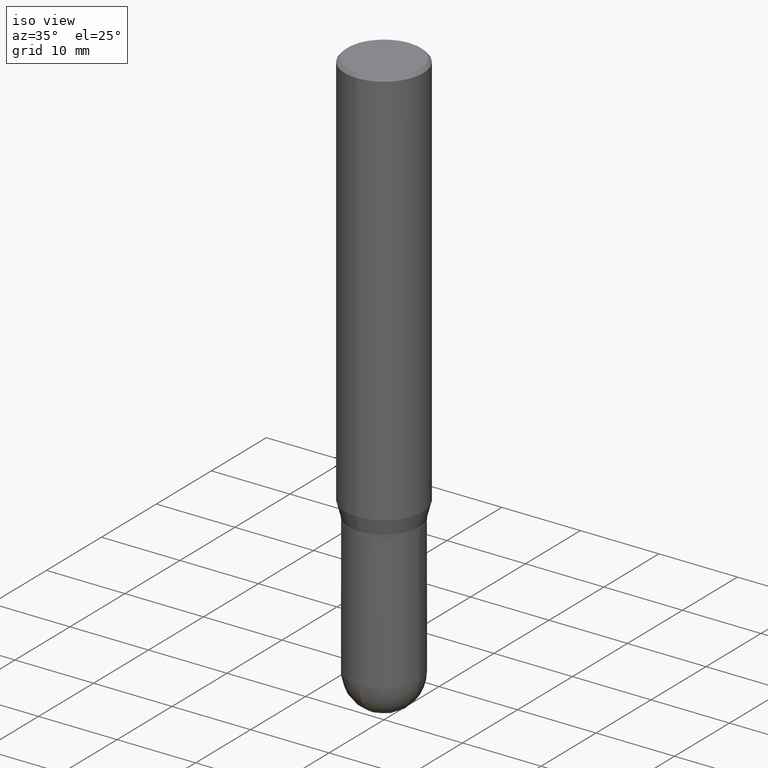
[diagram: clean part render]
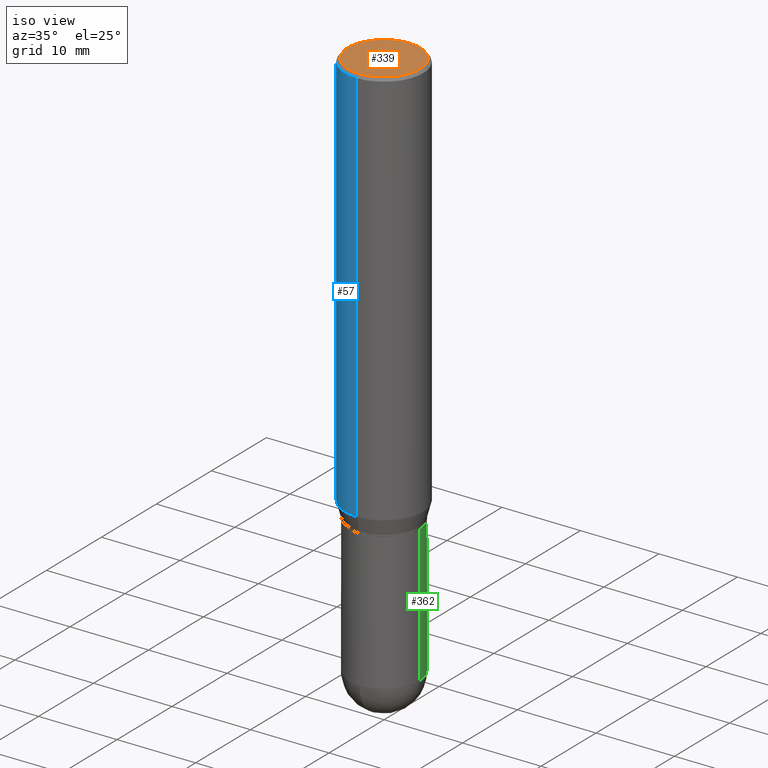
[diagram: same view with three faces highlighted in distinct colors, each labeled with its STEP entity id]
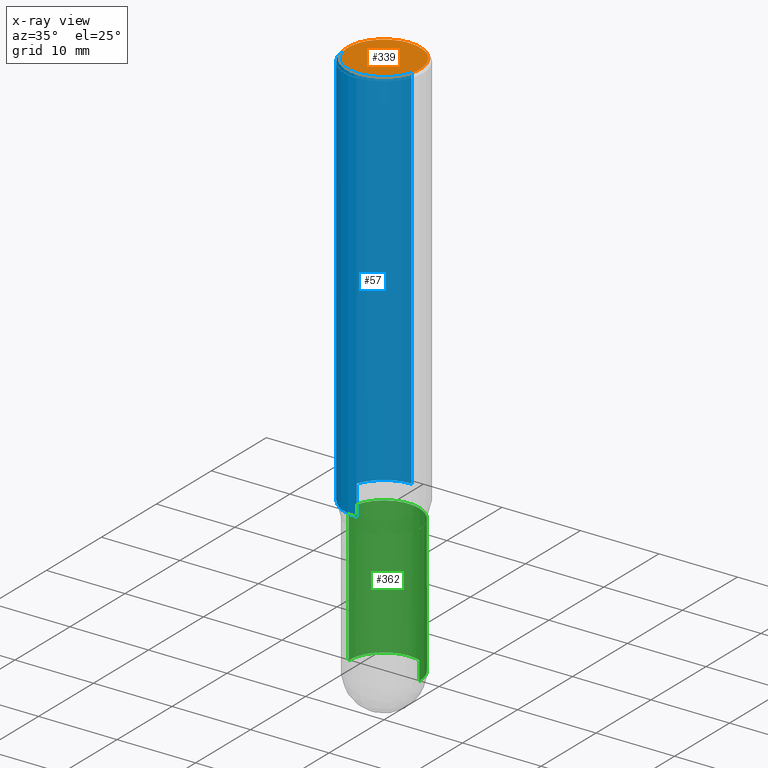
[diagram: x-ray of the same camera — body ghosted, the three highlighted faces saturated]
A machine part, iso view with three faces highlighted in distinct colors.
The next image is the same camera in x-ray (body ghosted, the three faces saturated) — at least one of them is partly hidden behind the body in this view.
Their STEP definitions:

[orange] entity #339 — the highlighted planar face has unit normal (0, -0, -1).
#26 = PLANE ( 'NONE',  #233 ) ;
#43 = AXIS2_PLACEMENT_3D ( 'NONE', #319, #207, #287 ) ;
#72 = FACE_OUTER_BOUND ( 'NONE', #385, .T. ) ;
#92 = VERTEX_POINT ( 'NONE', #239 ) ;
#106 = CIRCLE ( 'NONE', #43, 0.1818500000000000116 ) ;
#121 = DIRECTION ( 'NONE',  ( 6.982962677686265922E-15, 1.000000000000000000, -3.491172054067977715E-15 ) ) ;
#134 = EDGE_CURVE ( 'NONE', #489, #92, #106, .T. ) ;
#176 = AXIS2_PLACEMENT_3D ( 'NONE', #312, #278, #434 ) ;
#207 = DIRECTION ( 'NONE',  ( -2.445684778589314030E-29, 3.491172054067977715E-15, 1.000000000000000000 ) ) ;
#233 = AXIS2_PLACEMENT_3D ( 'NONE', #354, #237, #121 ) ;
#237 = DIRECTION ( 'NONE',  ( 2.445684778589313749E-29, -3.491172054067977715E-15, -1.000000000000000000 ) ) ;
#239 = CARTESIAN_POINT ( 'NONE',  ( -1.299035295878039226E-15, -0.1818500000000000116, 2.277643965498135137E-16 ) ) ;
#278 = DIRECTION ( 'NONE',  ( -2.445684778589314030E-29, 3.491172054067977715E-15, 1.000000000000000000 ) ) ;
#287 = DIRECTION ( 'NONE',  ( -6.982962677686265133E-15, -1.000000000000000000, 3.491172054067976926E-15 ) ) ;
#312 = CARTESIAN_POINT ( 'NONE',  ( 9.956510923775504622E-45, -1.421274442128118722E-30, -4.071052414824481619E-16 ) ) ;
#319 = CARTESIAN_POINT ( 'NONE',  ( 9.956510923775504622E-45, -1.421274442128118722E-30, -4.071052414824481619E-16 ) ) ;
#325 = EDGE_CURVE ( 'NONE', #92, #489, #458, .T. ) ;
#338 = ORIENTED_EDGE ( 'NONE', *, *, #134, .T. ) ;
#339 = ADVANCED_FACE ( 'NONE', ( #72 ), #26, .F. ) ;
#354 = CARTESIAN_POINT ( 'NONE',  ( 1.269851762937247450E-15, 0.1818500000000000116, -8.384222587734856826E-16 ) ) ;
#385 = EDGE_LOOP ( 'NONE', ( #338, #476 ) ) ;
#434 = DIRECTION ( 'NONE',  ( -6.982962677686265133E-15, -1.000000000000000000, 3.491172054067976926E-15 ) ) ;
#445 = CARTESIAN_POINT ( 'NONE',  ( 1.322223983019894726E-15, 0.1818500000000000116, -1.041974879514709887E-15 ) ) ;
#458 = CIRCLE ( 'NONE', #176, 0.1818500000000000116 ) ;
#476 = ORIENTED_EDGE ( 'NONE', *, *, #325, .T. ) ;
#489 = VERTEX_POINT ( 'NONE', #445 ) ;

[blue] entity #57 — the highlighted cylindrical surface (partial cylindrical patch) has radius 5 mm, axis along (-0, 0, 1).
#21 = AXIS2_PLACEMENT_3D ( 'NONE', #99, #56, #259 ) ;
#22 = VERTEX_POINT ( 'NONE', #461 ) ;
#45 = CARTESIAN_POINT ( 'NONE',  ( 4.899143408592464903E-29, -6.993441144453169598E-15, -2.003178599090893464 ) ) ;
#47 = DIRECTION ( 'NONE',  ( -2.445684778589314030E-29, 3.491172054067977715E-15, 1.000000000000000000 ) ) ;
#51 = ORIENTED_EDGE ( 'NONE', *, *, #205, .F. ) ;
#56 = DIRECTION ( 'NONE',  ( -2.445684778589314030E-29, 3.491172054067977715E-15, 1.000000000000000000 ) ) ;
#57 = ADVANCED_FACE ( 'NONE', ( #138 ), #452, .T. ) ;
#60 = VECTOR ( 'NONE', #271, 39.37007874015748143 ) ;
#80 = DIRECTION ( 'NONE',  ( -6.982962677686265922E-15, -1.000000000000000000, 4.163344669033675634E-15 ) ) ;
#88 = ORIENTED_EDGE ( 'NONE', *, *, #412, .F. ) ;
#90 = AXIS2_PLACEMENT_3D ( 'NONE', #282, #47, #130 ) ;
#99 = CARTESIAN_POINT ( 'NONE',  ( 0.000000000000000000, 0.000000000000000000, 0.000000000000000000 ) ) ;
#109 = EDGE_CURVE ( 'NONE', #321, #22, #145, .T. ) ;
#130 = DIRECTION ( 'NONE',  ( -6.982962677686265133E-15, -1.000000000000000000, 3.491137977679279424E-15 ) ) ;
#138 = FACE_OUTER_BOUND ( 'NONE', #144, .T. ) ;
#144 = EDGE_LOOP ( 'NONE', ( #88, #423, #175, #51 ) ) ;
#145 = LINE ( 'NONE', #146, #60 ) ;
#146 = CARTESIAN_POINT ( 'NONE',  ( -1.374596203102541214E-15, -0.1968499999999999694, 6.872372188432813315E-16 ) ) ;
#157 = CARTESIAN_POINT ( 'NONE',  ( 1.398703375343805514E-15, 0.1968499999999929750, -2.003178599090894352 ) ) ;
#170 = CARTESIAN_POINT ( 'NONE',  ( 1.398703375343756802E-15, 0.1968499999999999694, -6.872372188432813315E-16 ) ) ;
#175 = ORIENTED_EDGE ( 'NONE', *, *, #109, .T. ) ;
#205 = EDGE_CURVE ( 'NONE', #498, #22, #491, .T. ) ;
#212 = LINE ( 'NONE', #170, #475 ) ;
#259 = DIRECTION ( 'NONE',  ( -6.982962677686265922E-15, -1.000000000000000000, 3.491172054067977715E-15 ) ) ;
#271 = DIRECTION ( 'NONE',  ( -2.445684778589314030E-29, 3.491172054067977715E-15, 1.000000000000000000 ) ) ;
#282 = CARTESIAN_POINT ( 'NONE',  ( 3.668527167884071097E-31, -5.236758081102108568E-17, -0.01500000000000040710 ) ) ;
#300 = AXIS2_PLACEMENT_3D ( 'NONE', #45, #402, #80 ) ;
#321 = VERTEX_POINT ( 'NONE', #510 ) ;
#329 = DIRECTION ( 'NONE',  ( -2.445684778589314030E-29, 3.491172054067977715E-15, 1.000000000000000000 ) ) ;
#363 = CARTESIAN_POINT ( 'NONE',  ( 1.398703375343806303E-15, 0.1968499999999999139, -0.01500000000000109579 ) ) ;
#371 = VERTEX_POINT ( 'NONE', #157 ) ;
#402 = DIRECTION ( 'NONE',  ( -2.445684778589314030E-29, 3.491172054067977715E-15, 1.000000000000000000 ) ) ;
#412 = EDGE_CURVE ( 'NONE', #371, #498, #212, .T. ) ;
#423 = ORIENTED_EDGE ( 'NONE', *, *, #454, .T. ) ;
#433 = CIRCLE ( 'NONE', #300, 0.1968499999999999694 ) ;
#452 = CYLINDRICAL_SURFACE ( 'NONE', #21, 0.1968499999999999694 ) ;
#454 = EDGE_CURVE ( 'NONE', #371, #321, #433, .T. ) ;
#461 = CARTESIAN_POINT ( 'NONE',  ( -1.374596203102541017E-15, -0.1968500000000000805, -0.01499999999999972015 ) ) ;
#475 = VECTOR ( 'NONE', #329, 39.37007874015748143 ) ;
#491 = CIRCLE ( 'NONE', #90, 0.1968500000000000250 ) ;
#498 = VERTEX_POINT ( 'NONE', #363 ) ;
#510 = CARTESIAN_POINT ( 'NONE',  ( -1.374596203102492502E-15, -0.1968500000000069916, -2.003178599090893020 ) ) ;

[green] entity #362 — the highlighted cylindrical surface (partial cylindrical patch) has radius 4.4996 mm, axis along (-0, 0, 1).
#7 = CARTESIAN_POINT ( 'NONE',  ( 0.1771500000000000852, -8.522705948116114900E-15, -2.086699999999999999 ) ) ;
#15 = EDGE_CURVE ( 'NONE', #425, #71, #382, .T. ) ;
#55 = DIRECTION ( 'NONE',  ( -2.445468806185136597E-29, 3.491481338843145583E-15, 1.000000000000000000 ) ) ;
#71 = VERTEX_POINT ( 'NONE', #473 ) ;
#76 = DIRECTION ( 'NONE',  ( 1.000000000000000000, -6.982962677686270655E-15, 0.000000000000000000 ) ) ;
#94 = CARTESIAN_POINT ( 'NONE',  ( 6.787765491887772680E-29, -9.691130178159974964E-15, -2.775649999999999729 ) ) ;
#102 = ORIENTED_EDGE ( 'NONE', *, *, #188, .T. ) ;
#110 = FACE_OUTER_BOUND ( 'NONE', #370, .T. ) ;
#120 = VERTEX_POINT ( 'NONE', #7 ) ;
#154 = CARTESIAN_POINT ( 'NONE',  ( 0.000000000000000000, 0.000000000000000000, 0.000000000000000000 ) ) ;
#160 = CYLINDRICAL_SURFACE ( 'NONE', #365, 0.1771500000000000574 ) ;
#163 = CARTESIAN_POINT ( 'NONE',  ( -0.1771500000000000852, -7.229675687562965256E-15, -2.086699999999999999 ) ) ;
#165 = CARTESIAN_POINT ( 'NONE',  ( 5.102959757866523939E-29, -7.285674109763990928E-15, -2.086699999999999999 ) ) ;
#180 = ORIENTED_EDGE ( 'NONE', *, *, #15, .T. ) ;
#184 = VECTOR ( 'NONE', #291, 39.37007874015748143 ) ;
#188 = EDGE_CURVE ( 'NONE', #193, #425, #203, .T. ) ;
#189 = ORIENTED_EDGE ( 'NONE', *, *, #438, .F. ) ;
#192 = AXIS2_PLACEMENT_3D ( 'NONE', #440, #405, #76 ) ;
#193 = VERTEX_POINT ( 'NONE', #213 ) ;
#203 = CIRCLE ( 'NONE', #192, 0.1771500000000000574 ) ;
#213 = CARTESIAN_POINT ( 'NONE',  ( 0.1771500000000000574, -9.725433982314104551E-15, -2.775649999999999729 ) ) ;
#219 = DIRECTION ( 'NONE',  ( 1.000000000000000000, -6.982962677686270655E-15, 0.000000000000000000 ) ) ;
#246 = CARTESIAN_POINT ( 'NONE',  ( -0.1771500000000000574, 1.258726456399017887E-15, -8.713893512386568128E-30 ) ) ;
#258 = DIRECTION ( 'NONE',  ( -2.445468806185136597E-29, 3.491481338843145583E-15, 1.000000000000000000 ) ) ;
#274 = DIRECTION ( 'NONE',  ( -2.445468806185136597E-29, 3.491481338843145583E-15, 1.000000000000000000 ) ) ;
#283 = DIRECTION ( 'NONE',  ( -2.445468806185136877E-29, 3.491481338843145188E-15, 1.000000000000000000 ) ) ;
#291 = DIRECTION ( 'NONE',  ( -2.445468806185136877E-29, 3.491481338843145188E-15, 1.000000000000000000 ) ) ;
#326 = CARTESIAN_POINT ( 'NONE',  ( 1.237031838352190236E-15, 0.1771499999999903430, -2.775650000000000173 ) ) ;
#345 = EDGE_CURVE ( 'NONE', #193, #120, #469, .T. ) ;
#349 = AXIS2_PLACEMENT_3D ( 'NONE', #165, #258, #447 ) ;
#350 = CARTESIAN_POINT ( 'NONE',  ( 0.1771500000000000574, -1.237031838352122591E-15, 8.638147158322501361E-30 ) ) ;
#362 = ADVANCED_FACE ( 'NONE', ( #110 ), #160, .T. ) ;
#365 = AXIS2_PLACEMENT_3D ( 'NONE', #154, #274, #511 ) ;
#369 = CIRCLE ( 'NONE', #349, 0.1771500000000000852 ) ;
#370 = EDGE_LOOP ( 'NONE', ( #180, #463, #189, #504, #102 ) ) ;
#382 = CIRCLE ( 'NONE', #450, 0.1771500000000000574 ) ;
#405 = DIRECTION ( 'NONE',  ( -2.445468806185136597E-29, 3.491481338843145583E-15, 1.000000000000000000 ) ) ;
#407 = EDGE_CURVE ( 'NONE', #71, #460, #439, .T. ) ;
#425 = VERTEX_POINT ( 'NONE', #326 ) ;
#438 = EDGE_CURVE ( 'NONE', #120, #460, #369, .T. ) ;
#439 = LINE ( 'NONE', #246, #184 ) ;
#440 = CARTESIAN_POINT ( 'NONE',  ( 6.787765491887772680E-29, -9.691130178159974964E-15, -2.775649999999999729 ) ) ;
#447 = DIRECTION ( 'NONE',  ( 1.000000000000000000, -6.982962677686269077E-15, 0.000000000000000000 ) ) ;
#450 = AXIS2_PLACEMENT_3D ( 'NONE', #94, #55, #219 ) ;
#460 = VERTEX_POINT ( 'NONE', #163 ) ;
#463 = ORIENTED_EDGE ( 'NONE', *, *, #407, .T. ) ;
#467 = VECTOR ( 'NONE', #283, 39.37007874015748143 ) ;
#469 = LINE ( 'NONE', #350, #467 ) ;
#473 = CARTESIAN_POINT ( 'NONE',  ( -0.1771500000000000574, -7.229675687562965256E-15, -2.775649999999999729 ) ) ;
#504 = ORIENTED_EDGE ( 'NONE', *, *, #345, .F. ) ;
#511 = DIRECTION ( 'NONE',  ( 1.000000000000000000, -6.982962677686266711E-15, 4.876176775795934672E-29 ) ) ;